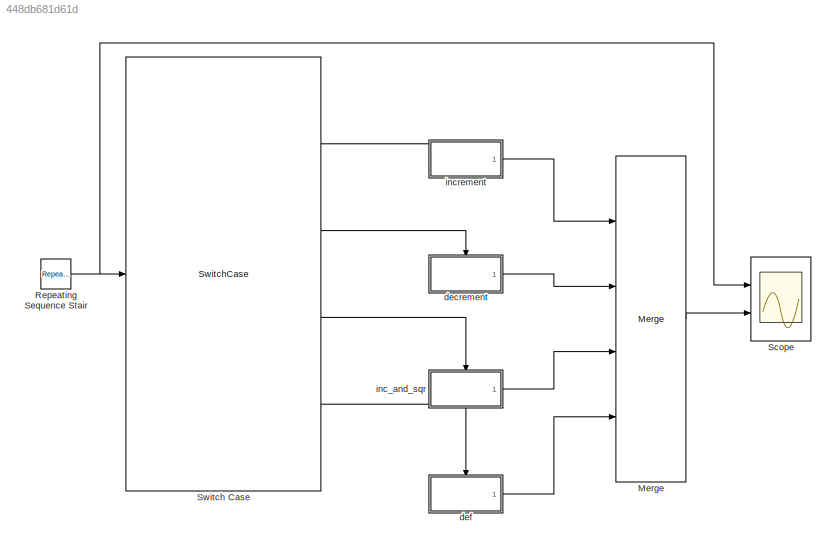
MODEL slx_448db681d61d
KIND model
CONFIG AbsTol = auto
CONFIG EnableMultiTasking = off
CONFIG FixedStep = 0.2
CONFIG MaxStep = auto
CONFIG MinStep = auto
CONFIG RelTol = 1e-3
CONFIG SampleTimeConstraint = Unconstrained
CONFIG Solver = FixedStepDiscrete
CONFIG SolverName = FixedStepDiscrete
CONFIG StartTime = 0.0
CONFIG StopTime = 10.0
BLOCK [Merge] Merge
  Inputs = 4
  Ports = [4, 1]
BLOCK [Reference] Repeating Sequence Stair  REF=simulink/Sources/Repeating
Sequence
Stair
  Ports = [0, 1]
  SourceBlock = simulink/Sources/Repeating\nSequence\nStair
  SourceProductBaseCode = SL
  SourceProductName = Simulink
  SourceType = Repeating Sequence Stair
BLOCK [Scope] Scope
  Floating = off
  NumInputPorts = 2
  Ports = [2]
  ScopeSpecificationString = Simulink.scopes.TimeScopeBlockCfg('CurrentConfiguration', extmgr.ConfigurationSet(extmgr.Configuration('Core','General UI',true),extmgr.Configuration('Core','Source UI',true),extmgr.Configuration('Sources','WiredSimulink',true),extmgr.Configuration('Visuals','Time Domain',true,'SerializedDisplays',{struct('MinYLimReal','0.375','MaxYLimReal','6.625','YLabelReal','','MinYLimMag','0.375','MaxYLimMag'...<+2073ch>
BLOCK [SwitchCase] Switch Case
  CaseConditions = {1,2,[3,4]}
  Ports = [1, 4]
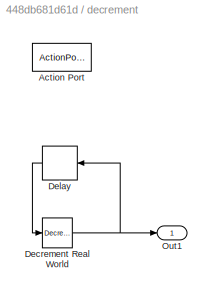
BLOCK [SubSystem] decrement
  Ports = [0, 1, 0, 0, 0, 0, 0, 1]
  RequestExecContextInheritance = off
  TreatAsAtomicUnit = on
BLOCK [ActionPort] decrement/Action Port
  ActionType = case
BLOCK [Reference] decrement/Decrement Real World  REF=simulink/Additional Math
& Discrete/Additional Math:
Increment - Decrement/Decrement
Real World
  Ports = [1, 1]
  SourceBlock = simulink/Additional Math\n& Discrete/Additional Math:\nIncrement - Decrement/Decrement\nReal World
  SourceProductBaseCode = SL
  SourceProductName = Simulink
  SourceType = Real World Value Decrement
BLOCK [Delay] decrement/Delay
  DelayLength = 1
  InitialCondition = 10
  InputPortMap = u0
  Ports = [1, 1]
BLOCK [Outport] decrement/Out1
  IconDisplay = Port number
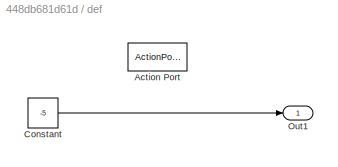
BLOCK [SubSystem] def
  Ports = [0, 1, 0, 0, 0, 0, 0, 1]
  RequestExecContextInheritance = off
  TreatAsAtomicUnit = on
BLOCK [ActionPort] def/Action Port
  ActionType = default
BLOCK [Constant] def/Constant
  Value = -5
BLOCK [Outport] def/Out1
  IconDisplay = Port number
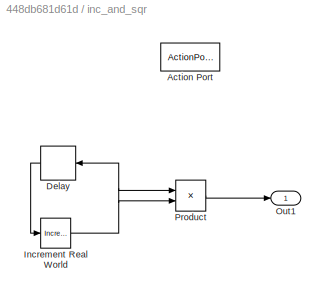
BLOCK [SubSystem] inc_and_sqr
  Ports = [0, 1, 0, 0, 0, 0, 0, 1]
  RequestExecContextInheritance = off
  TreatAsAtomicUnit = on
BLOCK [ActionPort] inc_and_sqr/Action Port
  ActionType = case
BLOCK [Delay] inc_and_sqr/Delay
  DelayLength = 1
  InputPortMap = u0
  Ports = [1, 1]
BLOCK [Reference] inc_and_sqr/Increment Real World  REF=simulink/Additional Math
& Discrete/Additional Math:
Increment - Decrement/Increment
Real World
  Ports = [1, 1]
  SourceBlock = simulink/Additional Math\n& Discrete/Additional Math:\nIncrement - Decrement/Increment\nReal World
  SourceProductBaseCode = SL
  SourceProductName = Simulink
  SourceType = Real World Value Increment
BLOCK [Outport] inc_and_sqr/Out1
  IconDisplay = Port number
BLOCK [Product] inc_and_sqr/Product
  InputSameDT = off
  OutDataTypeStr = Inherit: Inherit via internal rule
  Ports = [2, 1]
  RndMeth = Floor
  SaturateOnIntegerOverflow = off
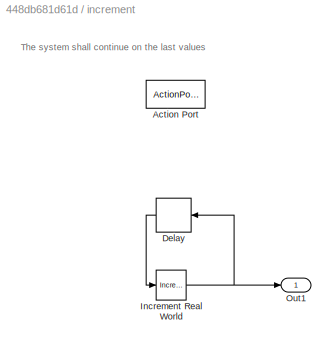
BLOCK [SubSystem] increment
  Ports = [0, 1, 0, 0, 0, 0, 0, 1]
  RequestExecContextInheritance = off
  TreatAsAtomicUnit = on
BLOCK [ActionPort] increment/Action Port
  ActionType = case
BLOCK [Delay] increment/Delay
  DelayLength = 1
  InputPortMap = u0
  Ports = [1, 1]
BLOCK [Reference] increment/Increment Real World  REF=simulink/Additional Math
& Discrete/Additional Math:
Increment - Decrement/Increment
Real World
  Ports = [1, 1]
  SourceBlock = simulink/Additional Math\n& Discrete/Additional Math:\nIncrement - Decrement/Increment\nReal World
  SourceProductBaseCode = SL
  SourceProductName = Simulink
  SourceType = Real World Value Increment
BLOCK [Outport] increment/Out1
  IconDisplay = Port number
ANNOTATION increment: The system shall continue on the last values
LINE Merge:1 -> Scope:2
NET Repeating Sequence Stair:1 -> Scope:1, Switch Case:1
LINE Switch Case:1 -> increment:ifaction
LINE Switch Case:2 -> decrement:ifaction
LINE Switch Case:3 -> inc_and_sqr:ifaction
LINE Switch Case:4 -> def:ifaction
NET decrement/Decrement Real World:1 -> decrement/Delay:1, decrement/Out1:1
LINE decrement/Delay:1 -> decrement/Decrement Real World:1
LINE decrement:1 -> Merge:2
LINE def/Constant:1 -> def/Out1:1
LINE def:1 -> Merge:4
LINE inc_and_sqr/Delay:1 -> inc_and_sqr/Increment Real World:1
NET inc_and_sqr/Increment Real World:1 -> inc_and_sqr/Delay:1, inc_and_sqr/Product:1, inc_and_sqr/Product:2
LINE inc_and_sqr/Product:1 -> inc_and_sqr/Out1:1
LINE inc_and_sqr:1 -> Merge:3
LINE increment/Delay:1 -> increment/Increment Real World:1
NET increment/Increment Real World:1 -> increment/Delay:1, increment/Out1:1
LINE increment:1 -> Merge:1
note: NET lines group one-source signal fan-out (src -> all destinations, sorted); 1:1 wires keep LINE
